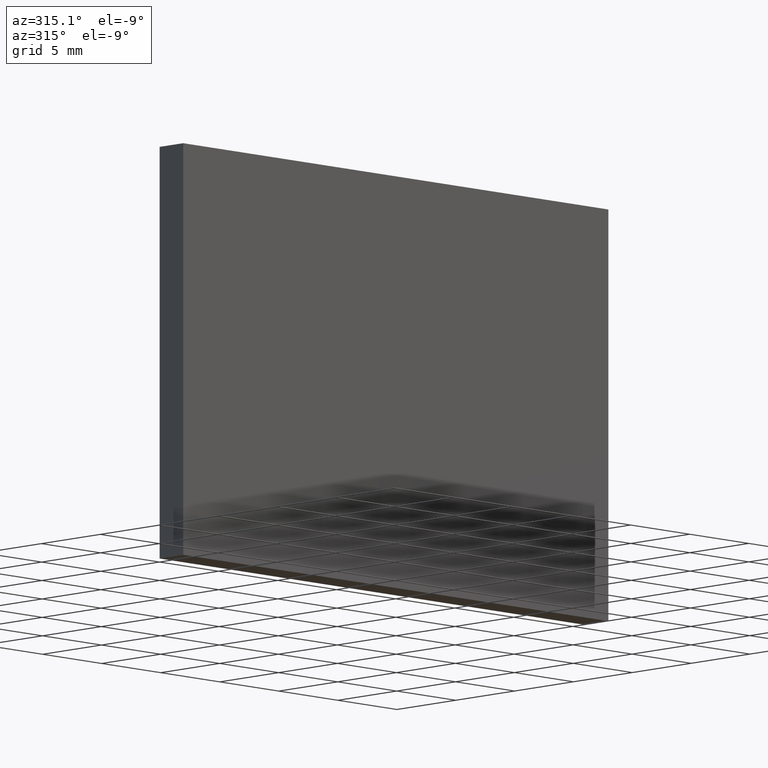
[diagram: clean part render]
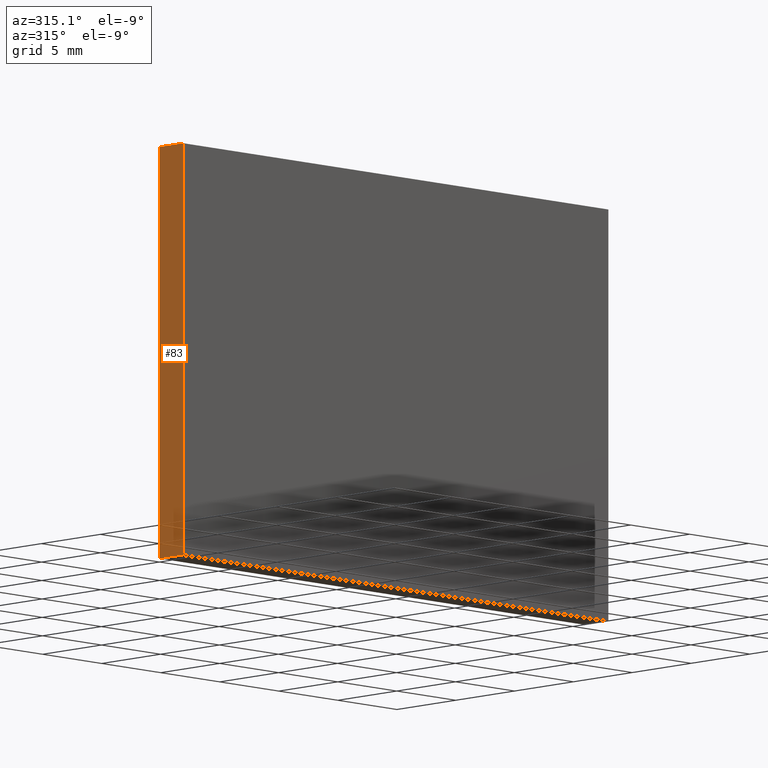
[diagram: same view with one face highlighted and labeled with its STEP entity id]
A machine part, auxiliary view. The second image highlights one B-rep face of the part: STEP entity #83.
In plain terms, the highlighted planar face has unit normal (1, 0, 0).
Its self-contained STEP definition (entity closure, byte-faithful):
#2 = LINE ( 'NONE', #80, #194 ) ;
#3 = EDGE_CURVE ( 'NONE', #185, #20, #189, .T. ) ;
#4 = FACE_OUTER_BOUND ( 'NONE', #90, .T. ) ;
#20 = VERTEX_POINT ( 'NONE', #130 ) ;
#23 = CARTESIAN_POINT ( 'NONE',  ( -18.00000000000000400, 2.000000000000000000, -12.49999999999999800 ) ) ;
#27 = ORIENTED_EDGE ( 'NONE', *, *, #58, .T. ) ;
#39 = LINE ( 'NONE', #144, #78 ) ;
#52 = DIRECTION ( 'NONE',  ( -0.0000000000000000000, -1.000000000000000000, -0.0000000000000000000 ) ) ;
#58 = EDGE_CURVE ( 'NONE', #20, #60, #39, .T. ) ;
#59 = CARTESIAN_POINT ( 'NONE',  ( -18.00000000000000400, 2.000000000000000000, -12.49999999999999800 ) ) ;
#60 = VERTEX_POINT ( 'NONE', #112 ) ;
#68 = VERTEX_POINT ( 'NONE', #175 ) ;
#69 = DIRECTION ( 'NONE',  ( 1.000000000000000000, 0.0000000000000000000, 0.0000000000000000000 ) ) ;
#73 = VECTOR ( 'NONE', #102, 1000.000000000000000 ) ;
#78 = VECTOR ( 'NONE', #98, 1000.000000000000000 ) ;
#79 = DIRECTION ( 'NONE',  ( 0.0000000000000000000, 0.0000000000000000000, 1.000000000000000000 ) ) ;
#80 = CARTESIAN_POINT ( 'NONE',  ( -18.00000000000000400, 2.000000000000000000, 12.50000000000000200 ) ) ;
#83 = ADVANCED_FACE ( 'NONE', ( #4 ), #96, .F. ) ;
#86 = LINE ( 'NONE', #138, #164 ) ;
#90 = EDGE_LOOP ( 'NONE', ( #27, #125, #200, #105 ) ) ;
#96 = PLANE ( 'NONE',  #101 ) ;
#98 = DIRECTION ( 'NONE',  ( 0.0000000000000000000, 0.0000000000000000000, 1.000000000000000000 ) ) ;
#101 = AXIS2_PLACEMENT_3D ( 'NONE', #23, #69, #156 ) ;
#102 = DIRECTION ( 'NONE',  ( -0.0000000000000000000, -1.000000000000000000, -0.0000000000000000000 ) ) ;
#105 = ORIENTED_EDGE ( 'NONE', *, *, #3, .T. ) ;
#111 = EDGE_CURVE ( 'NONE', #68, #60, #2, .T. ) ;
#112 = CARTESIAN_POINT ( 'NONE',  ( -18.00000000000000400, 0.0000000000000000000, 12.50000000000000200 ) ) ;
#124 = CARTESIAN_POINT ( 'NONE',  ( -18.00000000000000400, 2.000000000000000000, -12.49999999999999800 ) ) ;
#125 = ORIENTED_EDGE ( 'NONE', *, *, #111, .F. ) ;
#130 = CARTESIAN_POINT ( 'NONE',  ( -18.00000000000000400, 0.0000000000000000000, -12.49999999999999800 ) ) ;
#138 = CARTESIAN_POINT ( 'NONE',  ( -18.00000000000000400, 2.000000000000000000, -12.49999999999999800 ) ) ;
#144 = CARTESIAN_POINT ( 'NONE',  ( -18.00000000000000400, 0.0000000000000000000, -12.49999999999999800 ) ) ;
#156 = DIRECTION ( 'NONE',  ( 0.0000000000000000000, 0.0000000000000000000, -1.000000000000000000 ) ) ;
#157 = EDGE_CURVE ( 'NONE', #185, #68, #86, .T. ) ;
#164 = VECTOR ( 'NONE', #79, 1000.000000000000000 ) ;
#175 = CARTESIAN_POINT ( 'NONE',  ( -18.00000000000000400, 2.000000000000000000, 12.50000000000000200 ) ) ;
#185 = VERTEX_POINT ( 'NONE', #124 ) ;
#189 = LINE ( 'NONE', #59, #73 ) ;
#194 = VECTOR ( 'NONE', #52, 1000.000000000000000 ) ;
#200 = ORIENTED_EDGE ( 'NONE', *, *, #157, .F. ) ;